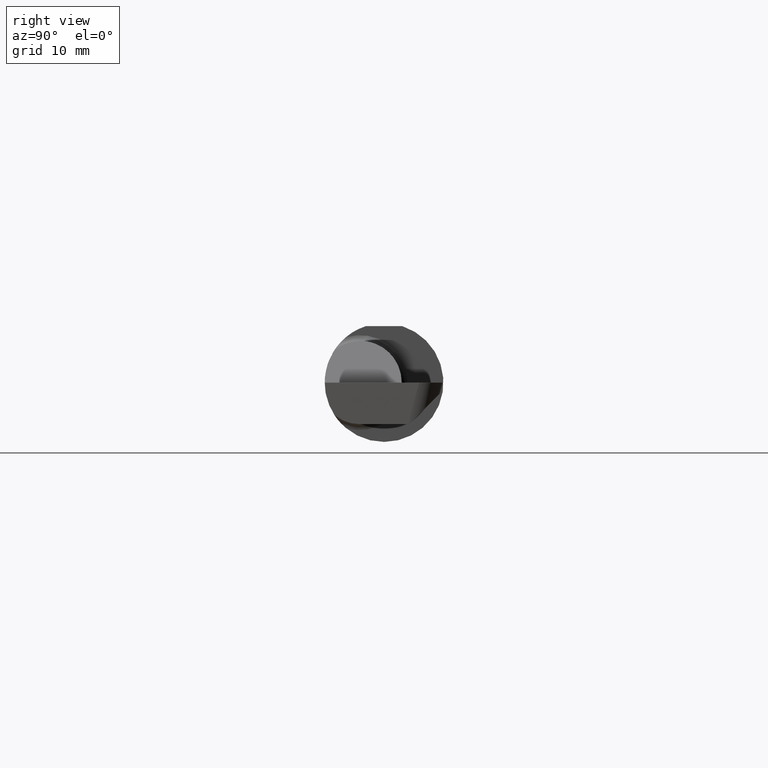
[diagram: clean part render]
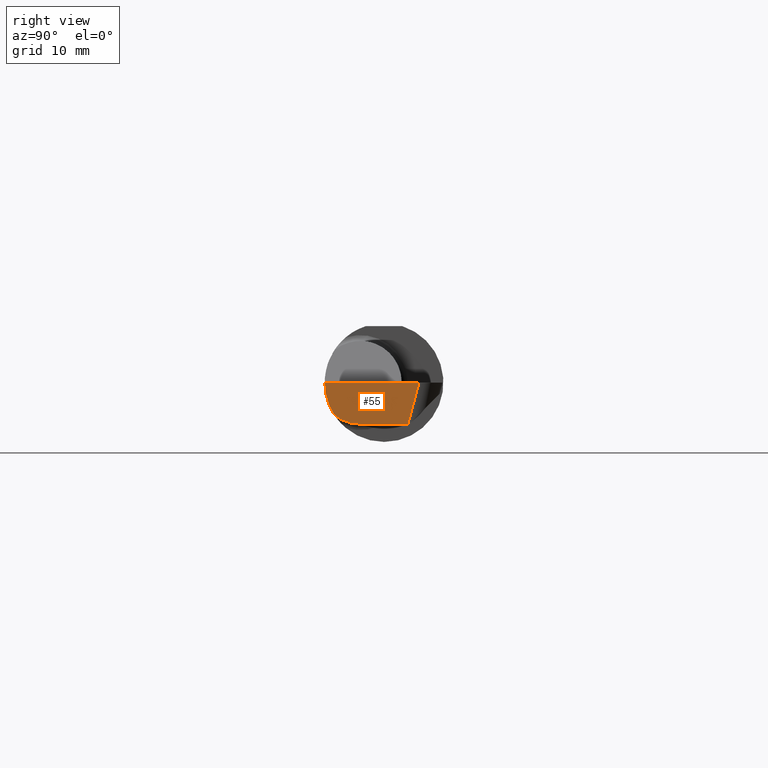
[diagram: same view with one face highlighted and labeled with its STEP entity id]
A machine part, right view. The second image highlights one B-rep face of the part: STEP entity #55.
In plain terms, the highlighted planar face has unit normal (-0.9992, 0.0349, 0.0175).
Its self-contained STEP definition (entity closure, byte-faithful):
#8 = AXIS2_PLACEMENT_3D ( 'NONE', #300, #173, #69 ) ;
#19 = VERTEX_POINT ( 'NONE', #341 ) ;
#24 = CARTESIAN_POINT ( 'NONE',  ( 2.988136526189751230, -0.1008500000000000785, -0.1750000000000000722 ) ) ;
#34 = LINE ( 'NONE', #475, #42 ) ;
#42 = VECTOR ( 'NONE', #705, 39.37007874015748854 ) ;
#48 = CARTESIAN_POINT ( 'NONE',  ( 2.984795792828450089, -0.2355204011147991883, -0.09701513151466764628 ) ) ;
#49 = ORIENTED_EDGE ( 'NONE', *, *, #96, .T. ) ;
#55 = ADVANCED_FACE ( 'NONE', ( #504 ), #661, .F. ) ;
#56 = VERTEX_POINT ( 'NONE', #512 ) ;
#63 = LINE ( 'NONE', #177, #241 ) ;
#69 = DIRECTION ( 'NONE',  ( -0.03489949670249512664, -0.9993908270190959842, 0.000000000000000000 ) ) ;
#80 = CARTESIAN_POINT ( 'NONE',  ( 2.985032866776429650, -0.2080850024789289987, -0.1382955322609668025 ) ) ;
#96 = EDGE_CURVE ( 'NONE', #644, #452, #131, .T. ) ;
#104 = EDGE_CURVE ( 'NONE', #452, #19, #63, .T. ) ;
#109 =( BOUNDED_CURVE ( )  B_SPLINE_CURVE ( 3, ( #80, #48, #405, #678 ),
 .UNSPECIFIED., .F., .T. ) 
 B_SPLINE_CURVE_WITH_KNOTS ( ( 4, 4 ),
 ( 6.160376845738953833, 6.746954780470612256 ),
 .UNSPECIFIED. ) 
 CURVE ( )  GEOMETRIC_REPRESENTATION_ITEM ( )  RATIONAL_B_SPLINE_CURVE ( ( 1.000000000000000000, 0.9715321379117538569, 0.9715321379117538569, 1.000000000000000000 ) ) 
 REPRESENTATION_ITEM ( '' )  );
#120 = EDGE_CURVE ( 'NONE', #363, #56, #523, .T. ) ;
#131 = LINE ( 'NONE', #610, #570 ) ;
#166 = ORIENTED_EDGE ( 'NONE', *, *, #104, .T. ) ;
#173 = DIRECTION ( 'NONE',  ( -0.9992386149554828290, 0.03489418134010782713, 0.01745240643728358798 ) ) ;
#177 = CARTESIAN_POINT ( 'NONE',  ( 2.999942641679308242, 0.1497062540083303195, 0.000000000000000000 ) ) ;
#189 = EDGE_CURVE ( 'NONE', #363, #19, #109, .T. ) ;
#236 = EDGE_CURVE ( 'NONE', #644, #56, #34, .T. ) ;
#241 = VECTOR ( 'NONE', #287, 39.37007874015748143 ) ;
#249 = ORIENTED_EDGE ( 'NONE', *, *, #236, .F. ) ;
#270 = ORIENTED_EDGE ( 'NONE', *, *, #120, .T. ) ;
#273 = EDGE_LOOP ( 'NONE', ( #249, #49, #166, #670, #270 ) ) ;
#287 = DIRECTION ( 'NONE',  ( -0.03489949670249513358, -0.9993908270190959842, 0.000000000000000000 ) ) ;
#290 = CARTESIAN_POINT ( 'NONE',  ( 2.985032866776429650, -0.2080850024789289987, -0.1382955322609668025 ) ) ;
#300 = CARTESIAN_POINT ( 'NONE',  ( 2.999942641679308242, 0.1497062540083303195, 0.000000000000000000 ) ) ;
#335 = CARTESIAN_POINT ( 'NONE',  ( 2.995153940549321714, 0.1001024549918553413, -0.1750000000000001277 ) ) ;
#341 = CARTESIAN_POINT ( 'NONE',  ( 2.985989829834099218, -0.2498499999999999888, 0.000000000000000000 ) ) ;
#353 = CARTESIAN_POINT ( 'NONE',  ( 2.985694921565461790, -0.1771157075472508668, -0.1623092683844332140 ) ) ;
#363 = VERTEX_POINT ( 'NONE', #290 ) ;
#405 = CARTESIAN_POINT ( 'NONE',  ( 2.985124127500504265, -0.2498499999999999610, -0.04956584089959700790 ) ) ;
#452 = VERTEX_POINT ( 'NONE', #514 ) ;
#470 = CARTESIAN_POINT ( 'NONE',  ( 2.986768025497130274, -0.1400387324517230192, -0.1750000000000001277 ) ) ;
#475 = CARTESIAN_POINT ( 'NONE',  ( 2.988640834071240260, -0.08640851177310855669, -0.1750000000000000722 ) ) ;
#504 = FACE_OUTER_BOUND ( 'NONE', #273, .T. ) ;
#512 = CARTESIAN_POINT ( 'NONE',  ( 2.988136526189751230, -0.1008500000000000785, -0.1750000000000000722 ) ) ;
#514 = CARTESIAN_POINT ( 'NONE',  ( 2.999847912445206877, 0.1469935636673019019, 0.000000000000000000 ) ) ;
#523 =( BOUNDED_CURVE ( )  B_SPLINE_CURVE ( 3, ( #627, #353, #470, #24 ),
 .UNSPECIFIED., .F., .T. ) 
 B_SPLINE_CURVE_WITH_KNOTS ( ( 4, 4 ),
 ( 0.4474640105399658729, 1.107026853503871866 ),
 .UNSPECIFIED. ) 
 CURVE ( )  GEOMETRIC_REPRESENTATION_ITEM ( )  RATIONAL_B_SPLINE_CURVE ( ( 1.000000000000000000, 0.9640754331822831702, 0.9640754331822831702, 1.000000000000000000 ) ) 
 REPRESENTATION_ITEM ( '' )  );
#570 = VECTOR ( 'NONE', #673, 39.37007874015748854 ) ;
#610 = CARTESIAN_POINT ( 'NONE',  ( 2.999866154205845792, 0.1471757923639230858, 0.0006800867543872493853 ) ) ;
#627 = CARTESIAN_POINT ( 'NONE',  ( 2.985032866776429650, -0.2080850024789289987, -0.1382955322609668025 ) ) ;
#644 = VERTEX_POINT ( 'NONE', #335 ) ;
#661 = PLANE ( 'NONE',  #8 ) ;
#670 = ORIENTED_EDGE ( 'NONE', *, *, #189, .F. ) ;
#673 = DIRECTION ( 'NONE',  ( 0.02590004391968260891, 0.2587322210431824421, 0.9656017944882975268 ) ) ;
#678 = CARTESIAN_POINT ( 'NONE',  ( 2.985989829834099218, -0.2498499999999999888, 0.000000000000000000 ) ) ;
#705 = DIRECTION ( 'NONE',  ( -0.03489949670249512664, -0.9993908270190959842, 1.222058880457094394E-16 ) ) ;